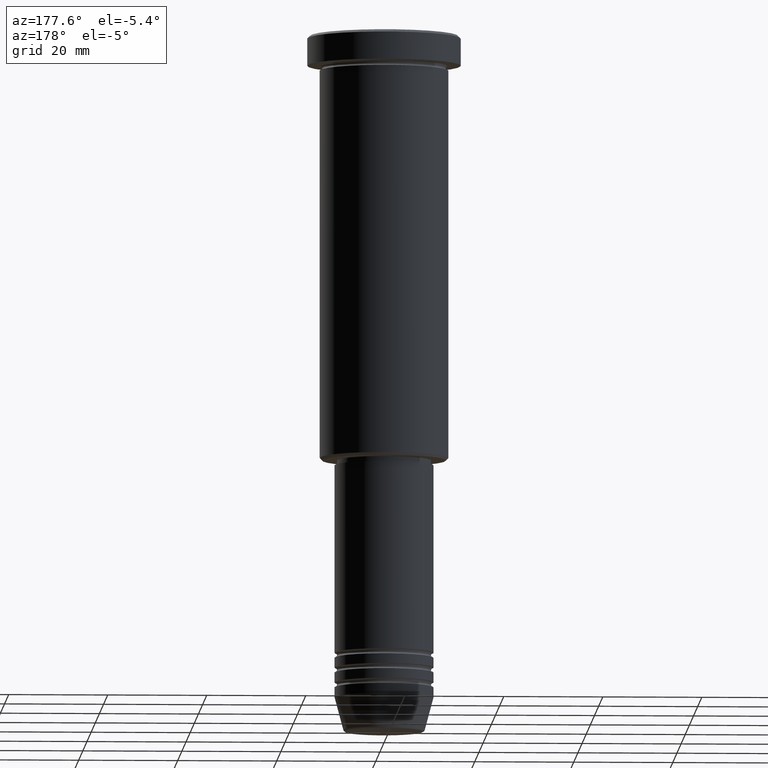
[diagram: clean part render]
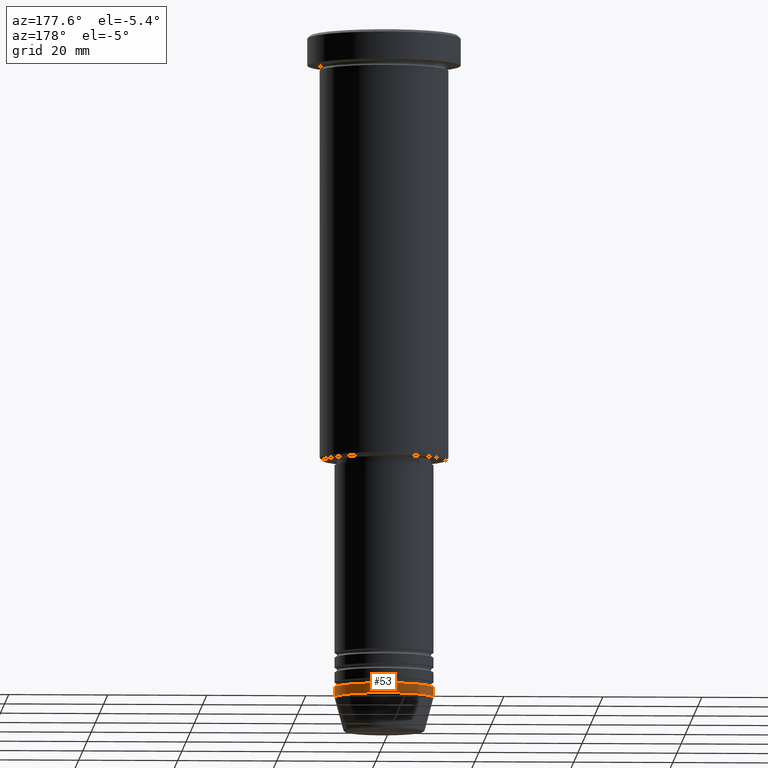
[diagram: same view with one face highlighted and labeled with its STEP entity id]
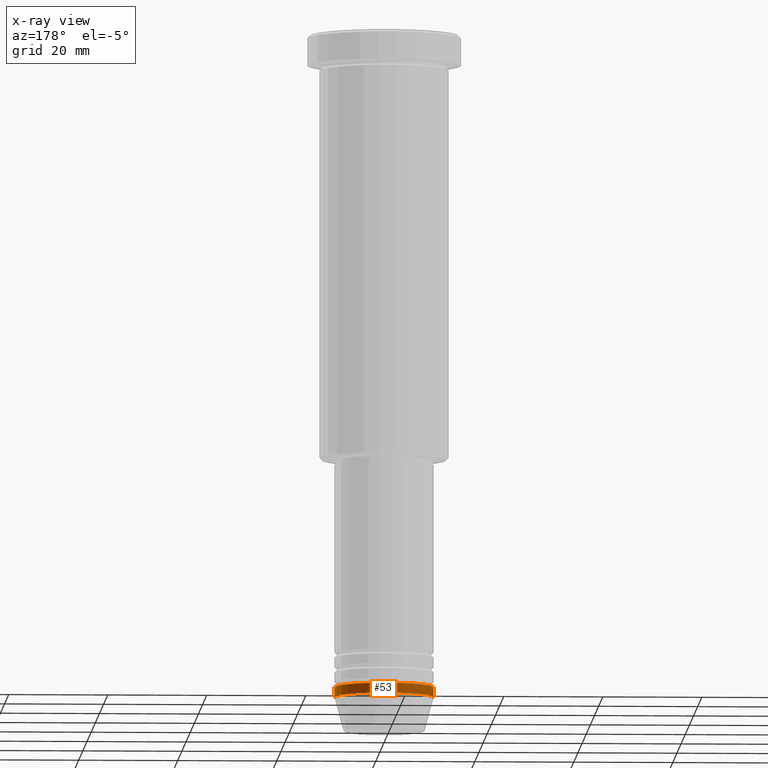
[diagram: x-ray of the same camera — body ghosted, the highlighted face saturated]
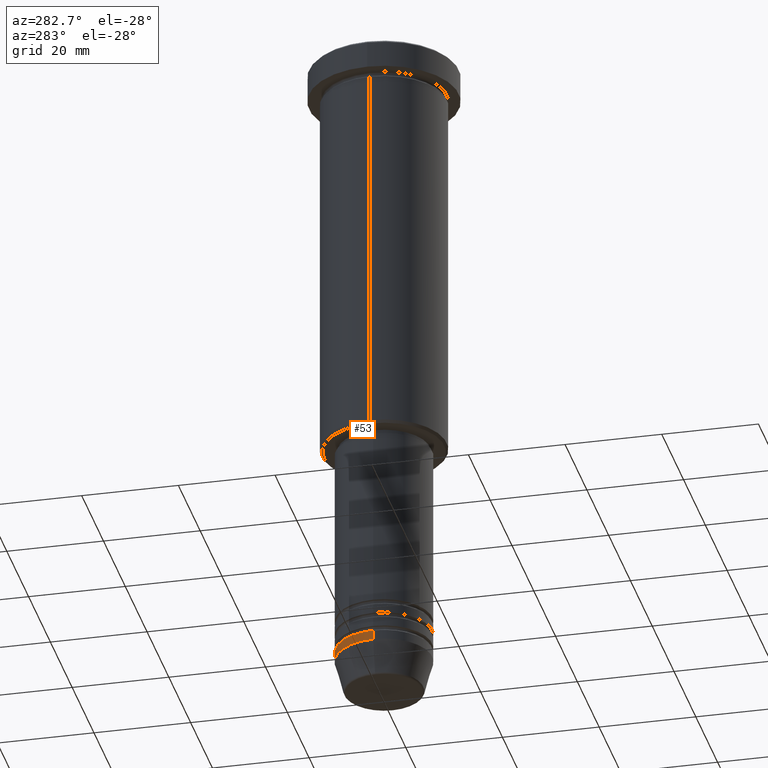
[diagram: same view with one face highlighted and labeled with its STEP entity id]
A machine part, auxiliary view. The second image highlights one B-rep face of the part: STEP entity #53.
The next image is the same camera in x-ray: the body ghosted, the highlighted face saturated — about 0% of this face is hidden behind the body in this view.
A second angle (auxiliary view) of the same face is appended — the face is thin or edge-on in the first view.
In plain terms, the highlighted cylindrical surface (partial cylindrical patch) has radius 10 mm, axis along (-0, -0, 1).
Its self-contained STEP definition (entity closure, byte-faithful):
#15 = DIRECTION ( 'NONE',  ( 1.000000000000000000, 0.000000000000000000, 0.000000000000000000 ) ) ;
#53 = ADVANCED_FACE ( 'NONE', ( #625 ), #846, .T. ) ;
#57 = EDGE_LOOP ( 'NONE', ( #795, #644, #364, #831 ) ) ;
#71 = EDGE_CURVE ( 'NONE', #177, #950, #919, .T. ) ;
#86 = CARTESIAN_POINT ( 'NONE',  ( -10.00000000000000000, 1.224646799147353256E-15, 0.000000000000000000 ) ) ;
#174 = LINE ( 'NONE', #86, #518 ) ;
#177 = VERTEX_POINT ( 'NONE', #489 ) ;
#186 = DIRECTION ( 'NONE',  ( -0.000000000000000000, -0.000000000000000000, 1.000000000000000000 ) ) ;
#190 = CARTESIAN_POINT ( 'NONE',  ( -10.00000000000000000, 1.224646799147353256E-15, -132.0000000000000000 ) ) ;
#303 = DIRECTION ( 'NONE',  ( -0.000000000000000000, -0.000000000000000000, 1.000000000000000000 ) ) ;
#309 = VECTOR ( 'NONE', #1103, 1000.000000000000000 ) ;
#352 = AXIS2_PLACEMENT_3D ( 'NONE', #972, #303, #1033 ) ;
#364 = ORIENTED_EDGE ( 'NONE', *, *, #850, .F. ) ;
#444 = DIRECTION ( 'NONE',  ( -0.000000000000000000, -0.000000000000000000, 1.000000000000000000 ) ) ;
#489 = CARTESIAN_POINT ( 'NONE',  ( 10.00000000000000000, 0.000000000000000000, -134.0000000000000000 ) ) ;
#510 = CARTESIAN_POINT ( 'NONE',  ( 10.00000000000000000, 0.000000000000000000, -132.0000000000000000 ) ) ;
#518 = VECTOR ( 'NONE', #444, 1000.000000000000000 ) ;
#538 = CIRCLE ( 'NONE', #723, 10.00000000000000000 ) ;
#547 = CARTESIAN_POINT ( 'NONE',  ( 0.000000000000000000, 0.000000000000000000, -134.0000000000000000 ) ) ;
#554 = EDGE_CURVE ( 'NONE', #939, #581, #174, .T. ) ;
#560 = CARTESIAN_POINT ( 'NONE',  ( 0.000000000000000000, 0.000000000000000000, 0.000000000000000000 ) ) ;
#581 = VERTEX_POINT ( 'NONE', #190 ) ;
#625 = FACE_OUTER_BOUND ( 'NONE', #57, .T. ) ;
#644 = ORIENTED_EDGE ( 'NONE', *, *, #554, .T. ) ;
#723 = AXIS2_PLACEMENT_3D ( 'NONE', #547, #186, #1102 ) ;
#730 = DIRECTION ( 'NONE',  ( -0.000000000000000000, -0.000000000000000000, 1.000000000000000000 ) ) ;
#795 = ORIENTED_EDGE ( 'NONE', *, *, #845, .T. ) ;
#831 = ORIENTED_EDGE ( 'NONE', *, *, #71, .F. ) ;
#843 = CIRCLE ( 'NONE', #352, 10.00000000000000000 ) ;
#845 = EDGE_CURVE ( 'NONE', #177, #939, #538, .T. ) ;
#846 = CYLINDRICAL_SURFACE ( 'NONE', #1053, 10.00000000000000000 ) ;
#850 = EDGE_CURVE ( 'NONE', #950, #581, #843, .T. ) ;
#911 = CARTESIAN_POINT ( 'NONE',  ( 10.00000000000000000, 0.000000000000000000, 0.000000000000000000 ) ) ;
#919 = LINE ( 'NONE', #911, #309 ) ;
#939 = VERTEX_POINT ( 'NONE', #992 ) ;
#950 = VERTEX_POINT ( 'NONE', #510 ) ;
#972 = CARTESIAN_POINT ( 'NONE',  ( 0.000000000000000000, 0.000000000000000000, -132.0000000000000000 ) ) ;
#992 = CARTESIAN_POINT ( 'NONE',  ( -10.00000000000000000, 1.224646799147353256E-15, -134.0000000000000000 ) ) ;
#1033 = DIRECTION ( 'NONE',  ( 1.000000000000000000, 0.000000000000000000, 0.000000000000000000 ) ) ;
#1053 = AXIS2_PLACEMENT_3D ( 'NONE', #560, #730, #15 ) ;
#1102 = DIRECTION ( 'NONE',  ( 1.000000000000000000, 0.000000000000000000, 0.000000000000000000 ) ) ;
#1103 = DIRECTION ( 'NONE',  ( -0.000000000000000000, -0.000000000000000000, 1.000000000000000000 ) ) ;